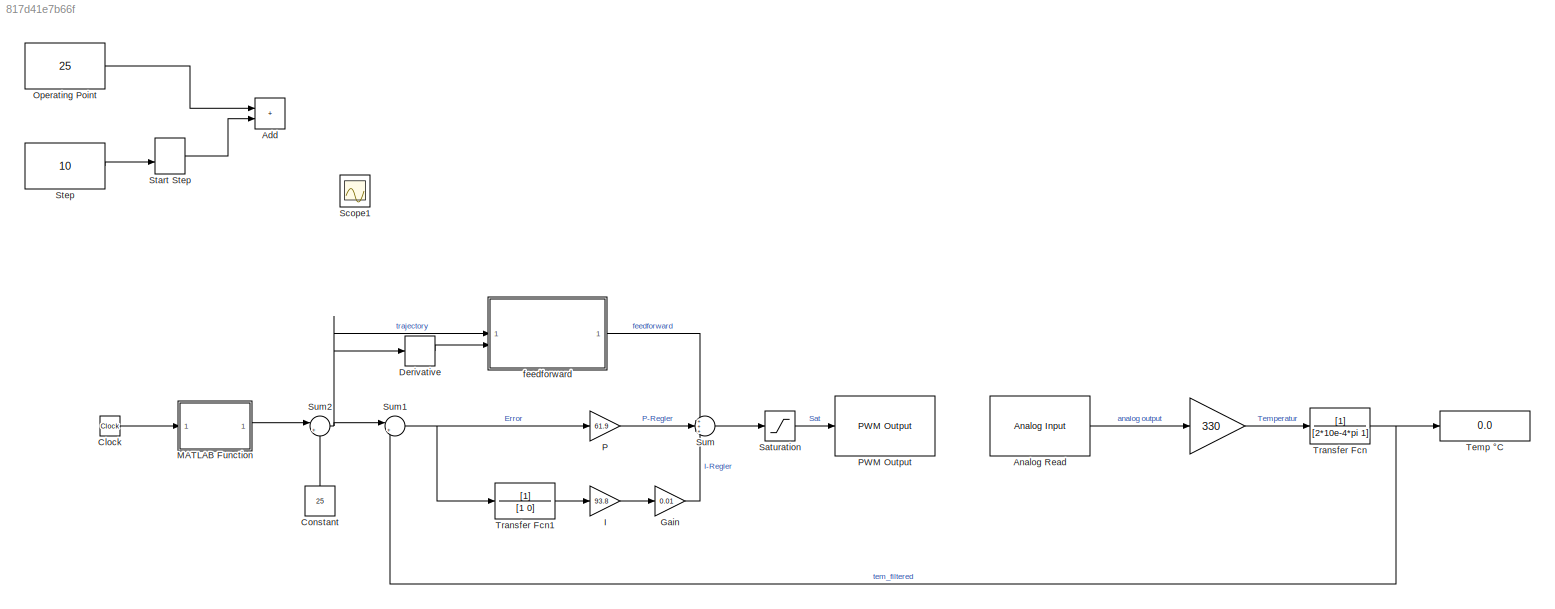
MODEL slx_817d41e7b66f
KIND model
CONFIG AbsTol = auto
CONFIG EnableMultiTasking = on
CONFIG FixedStep = 10e-3
CONFIG MaxStep = auto
CONFIG MinStep = auto
CONFIG RelTol = 1e-3
CONFIG SampleTimeConstraint = Unconstrained
CONFIG SolverName = FixedStepAuto
CONFIG StartTime = 0.0
CONFIG StopTime = 1000
BLOCK [Gain]  
  Gain = 330
BLOCK [Sum] Add
  IconShape = rectangular
BLOCK [Reference] Analog Read  REF=mbedblockslib/Analog Input
  LibrarySourceBlock = stmnucleorootlib/Common/Analog Input
  SourceBlock = mbedblockslib/Analog Input
  SourceType = mbed.AnalogInput
BLOCK [Clock] Clock
BLOCK [Constant] Constant
  NameLocation = right
  Value = 25
BLOCK [Derivative] Derivative
BLOCK [Gain] Gain
  Gain = 0.01
BLOCK [Gain] I
  Gain = 93.8
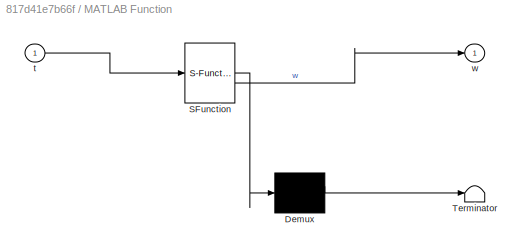
BLOCK [SubSystem] MATLAB Function
  ErrorFcn = Stateflow.Translate.translate
  PermitHierarchicalResolution = ExplicitOnly
  SFBlockType = MATLAB Function
  TreatAsAtomicUnit = on
BLOCK [Demux] MATLAB Function/ Demux 
  Outputs = 1
BLOCK [S-Function] MATLAB Function/ SFunction 
  EnableBusSupport = off
  FunctionName = sf_sfun
  PortCounts = [1 2]
  SFcnIsStateOwnerBlock = off
  SFunctionDeploymentMode = off
  Tag = Stateflow S-Function 2
BLOCK [Terminator] MATLAB Function/ Terminator 
BLOCK [Inport] MATLAB Function/t
BLOCK [Outport] MATLAB Function/w
BLOCK [Constant] Operating Point
  SampleTime = 10e-3
  Value = 25
BLOCK [Gain] P
  Gain = 61.9
BLOCK [Reference] PWM Output  REF=mbedblockslib/PWM Output
  LibrarySourceBlock = stmnucleorootlib/Common/PWM Output
  SourceBlock = mbedblockslib/PWM Output
  SourceType = mbed.PWMOutput
BLOCK [Saturate] Saturation
  LowerLimit = 0
  UpperLimit = 100
BLOCK [Scope] Scope1
  ActiveDisplayYMaximum = 1
  ActiveDisplayYMinimum = -1
  DataLoggingVariableName = ScopeData1
  Floating = off
  GraphicalSettings = {"Style":{"BackgroundColor":[0.12941176470588237,0.12941176470588237,0.12941176470588237],"AxesColor":[0.07058823529411765,0.07058823529411765,0.07058823529411765],"LabelsColor":[0.8509803921568627,0.8509803921568627,0.8509803921568627],"PreserveColors":false,"Visible":[true],"LineStyle":["-"],"LineWidth":[1.5],"BarWidth":[0.9],"LineColor":["auto"],"LineFaceAlpha":[1],"LineEdgeAlpha":[1],"Marker":...<+1906ch>
  IOType = viewer
  MultipleDisplayCache = [{"MaxYLimMag":1,"MaxYLimReal":1,"MinYLimMag":0,"MinYLimReal":-1,"PlotAsMagnitudePhase":false,"ShowGrid":true,"ShowLegend":false,"Title":"%<SignalLabel>","YLabel":""}]
  NumInputPorts = 1
  ScopeFrameLocation = window
  WasSavedAsWebScope = on
  WindowPosition = [0.000000,12.000000,1920.000000,1177.000000,]
BLOCK [ManualSwitch] Start Step
  CurrentSetting = 0
BLOCK [Constant] Step
  SampleTime = 10e-3
  Value = 10
BLOCK [Sum] Sum
  Inputs = +++
BLOCK [Sum] Sum1
  Inputs = |+-
BLOCK [Sum] Sum2
  Inputs = |++
BLOCK [Display] Temp °C
  Decimation = 1
BLOCK [TransferFcn] Transfer Fcn
  Denominator = [2*10e-4*pi 1]
BLOCK [TransferFcn] Transfer Fcn1
  Denominator = [1 0]
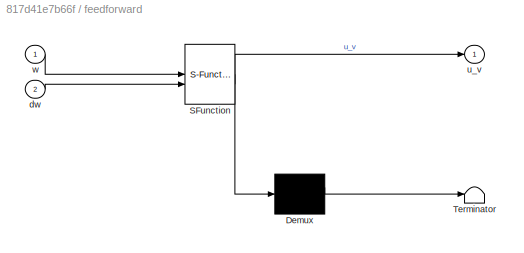
BLOCK [SubSystem] feedforward
  ErrorFcn = Stateflow.Translate.translate
  PermitHierarchicalResolution = ExplicitOnly
  SFBlockType = MATLAB Function
  TreatAsAtomicUnit = on
BLOCK [Demux] feedforward/ Demux 
  Outputs = 1
BLOCK [S-Function] feedforward/ SFunction 
  EnableBusSupport = off
  FunctionName = sf_sfun
  PortCounts = [2 2]
  SFcnIsStateOwnerBlock = off
  SFunctionDeploymentMode = off
  Tag = Stateflow S-Function 1
BLOCK [Terminator] feedforward/ Terminator 
BLOCK [Inport] feedforward/dw
  Port = 2
BLOCK [Outport] feedforward/u_v
BLOCK [Inport] feedforward/w
LINE  :1 -> Transfer Fcn:1
LINE Analog Read:1 ->  :1
LINE Clock:1 -> MATLAB Function:1
LINE Constant:1 -> Sum2:2
LINE Derivative:1 -> feedforward:2
LINE Gain:1 -> Sum:3
LINE I:1 -> Gain:1
LINE MATLAB Function:1 -> Sum2:1
LINE Operating Point:1 -> Add:1
LINE P:1 -> Sum:2
LINE Saturation:1 -> PWM Output:1
LINE Start Step:1 -> Add:2
LINE Step:1 -> Start Step:2
NET Sum1:1 -> P:1, Transfer Fcn1:1
NET Sum2:1 -> Derivative:1, Sum1:1, feedforward:1
LINE Sum:1 -> Saturation:1
LINE Transfer Fcn1:1 -> I:1
NET Transfer Fcn:1 -> Sum1:2, Temp °C:1
LINE feedforward:1 -> Sum:1
note: NET lines group one-source signal fan-out (src -> all destinations, sorted); 1:1 wires keep LINE
CHART MATLAB Function states=1 transitions=1
  STATE_LABEL 'eML_blk_kernel()'
  STATE_LABEL 'SCRIPT:\nfunction w = trajectory(t)\n    if t < 80\n        w = 15/80 *t;\n    elseif t < 120\n        w = 15;\n    elseif t < 240\n        w = -15/120 * (t - 120) + 15;\n    else\n        w = 0;\n    end\nend\n\n       \n\n'
CHART feedforward states=1 transitions=1
  STATE_LABEL 'eML_blk_kernel()'
  STATE_LABEL 'SCRIPT:\nfunction u_v = feedforward(w, dw)\n\n    K = 0.5849;\n    T = 130.3;\n\n    u_v = ( T * dw + w) / K;\n    \nend\n\n\n'
CHART  states=0 transitions=0
CHART  states=0 transitions=0
